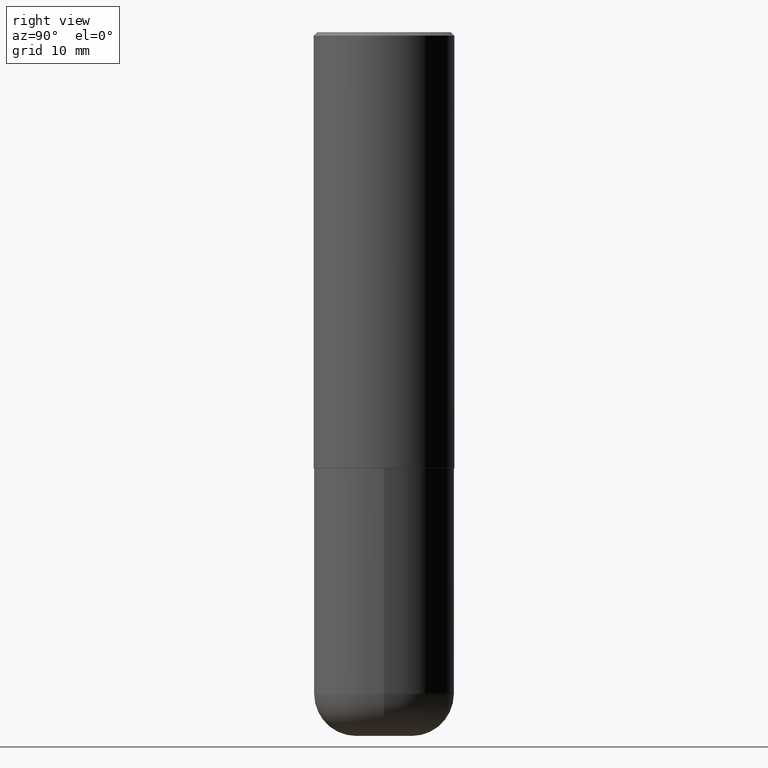
[diagram: clean part render]
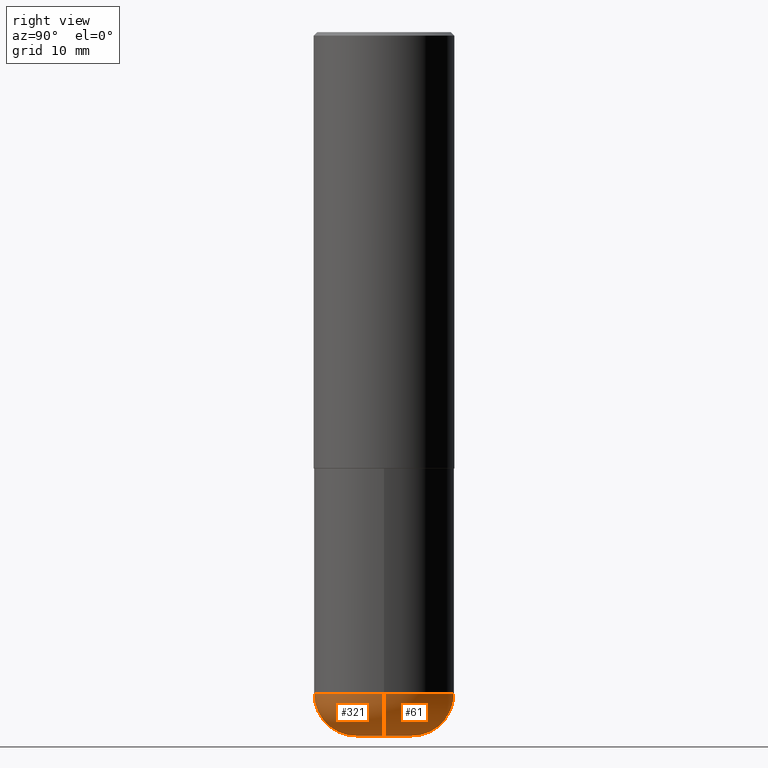
[diagram: same view with one multi-face feature highlighted, each face labeled with its STEP entity id]
A machine part, right view. The highlighted faces form ONE feature: a constant-radius fillet chain: 2 tangent blend faces with common blend radius 5.9995 mm. The faces share edges in the B-rep.
Their STEP definitions:
[1] entity #321 (Torus):
#5 = TOROIDAL_SURFACE ( 'NONE', #405, 0.1575000000000000289, 0.2361999999999999933 ) ;
#11 = DIRECTION ( 'NONE',  ( -2.445468806185136597E-29, 3.491481338843145583E-15, 1.000000000000000000 ) ) ;
#15 = CARTESIAN_POINT ( 'NONE',  ( -0.1575000000000000566, -1.137536230515325427E-14, -3.937000000000000277 ) ) ;
#24 = DIRECTION ( 'NONE',  ( 1.000000000000000000, -6.982962677686265133E-15, 0.000000000000000000 ) ) ;
#33 = CIRCLE ( 'NONE', #264, 0.2361999999999999933 ) ;
#34 = CARTESIAN_POINT ( 'NONE',  ( 9.627810689950883669E-29, -1.374596203102546341E-14, -3.937000000000000277 ) ) ;
#35 = ORIENTED_EDGE ( 'NONE', *, *, #53, .F. ) ;
#41 = EDGE_CURVE ( 'NONE', #85, #111, #33, .T. ) ;
#53 = EDGE_CURVE ( 'NONE', #89, #111, #404, .T. ) ;
#56 = EDGE_LOOP ( 'NONE', ( #322, #208, #223, #35 ) ) ;
#59 = CARTESIAN_POINT ( 'NONE',  ( 0.3936999999999999389, -1.567046654499579837E-14, -3.700800000000000090 ) ) ;
#85 = VERTEX_POINT ( 'NONE', #88 ) ;
#88 = CARTESIAN_POINT ( 'NONE',  ( 0.1575000000000000566, -1.484577865276105326E-14, -3.937000000000000277 ) ) ;
#89 = VERTEX_POINT ( 'NONE', #316 ) ;
#92 = DIRECTION ( 'NONE',  ( -2.445468806185136597E-29, 3.491481338843145583E-15, 1.000000000000000000 ) ) ;
#96 = AXIS2_PLACEMENT_3D ( 'NONE', #134, #325, #263 ) ;
#111 = VERTEX_POINT ( 'NONE', #59 ) ;
#130 = CARTESIAN_POINT ( 'NONE',  ( 9.050190957929953666E-29, -1.292127413879071357E-14, -3.700800000000000090 ) ) ;
#134 = CARTESIAN_POINT ( 'NONE',  ( -0.1575000000000000289, -1.180216932996855439E-14, -3.700800000000000090 ) ) ;
#137 = VERTEX_POINT ( 'NONE', #15 ) ;
#159 = DIRECTION ( 'NONE',  ( -6.982962677686266711E-15, -1.000000000000000000, 3.491481338843145583E-15 ) ) ;
#170 = EDGE_CURVE ( 'NONE', #137, #85, #235, .T. ) ;
#208 = ORIENTED_EDGE ( 'NONE', *, *, #170, .T. ) ;
#223 = ORIENTED_EDGE ( 'NONE', *, *, #41, .T. ) ;
#235 = CIRCLE ( 'NONE', #340, 0.1575000000000000566 ) ;
#238 = EDGE_CURVE ( 'NONE', #137, #89, #279, .T. ) ;
#254 = CARTESIAN_POINT ( 'NONE',  ( 9.050190957929953666E-29, -1.292127413879071357E-14, -3.700800000000000090 ) ) ;
#256 = DIRECTION ( 'NONE',  ( -2.445468806185136597E-29, 3.491481338843145583E-15, 1.000000000000000000 ) ) ;
#263 = DIRECTION ( 'NONE',  ( -1.000000000000000000, 7.105427357601005014E-15, 0.000000000000000000 ) ) ;
#264 = AXIS2_PLACEMENT_3D ( 'NONE', #318, #159, #24 ) ;
#279 = CIRCLE ( 'NONE', #96, 0.2361999999999999933 ) ;
#292 = FACE_OUTER_BOUND ( 'NONE', #56, .T. ) ;
#316 = CARTESIAN_POINT ( 'NONE',  ( -0.3936999999999999389, -1.012386738810319800E-14, -3.700800000000000090 ) ) ;
#318 = CARTESIAN_POINT ( 'NONE',  ( 0.1575000000000000289, -1.402109076052630027E-14, -3.700800000000000090 ) ) ;
#321 = ADVANCED_FACE ( 'NONE', ( #292 ), #5, .T. ) ;
#322 = ORIENTED_EDGE ( 'NONE', *, *, #238, .F. ) ;
#325 = DIRECTION ( 'NONE',  ( 7.105427357601001859E-15, 1.000000000000000000, -3.491481338843145583E-15 ) ) ;
#340 = AXIS2_PLACEMENT_3D ( 'NONE', #34, #256, #377 ) ;
#352 = DIRECTION ( 'NONE',  ( 1.000000000000000000, -6.982962677686269866E-15, 0.000000000000000000 ) ) ;
#363 = DIRECTION ( 'NONE',  ( 1.000000000000000000, -6.982962677686268288E-15, 4.883557194083112901E-29 ) ) ;
#377 = DIRECTION ( 'NONE',  ( 1.000000000000000000, -6.982962677686272233E-15, 0.000000000000000000 ) ) ;
#382 = AXIS2_PLACEMENT_3D ( 'NONE', #254, #92, #352 ) ;
#404 = CIRCLE ( 'NONE', #382, 0.3936999999999999389 ) ;
#405 = AXIS2_PLACEMENT_3D ( 'NONE', #130, #11, #363 ) ;
[2] entity #61 (Torus):
#3 = DIRECTION ( 'NONE',  ( 1.000000000000000000, -6.982962677686269866E-15, 0.000000000000000000 ) ) ;
#4 = DIRECTION ( 'NONE',  ( 1.000000000000000000, -6.982962677686268288E-15, 4.883557194083112901E-29 ) ) ;
#8 = CARTESIAN_POINT ( 'NONE',  ( 9.050190957929953666E-29, -1.292127413879071357E-14, -3.700800000000000090 ) ) ;
#15 = CARTESIAN_POINT ( 'NONE',  ( -0.1575000000000000566, -1.137536230515325427E-14, -3.937000000000000277 ) ) ;
#24 = DIRECTION ( 'NONE',  ( 1.000000000000000000, -6.982962677686265133E-15, 0.000000000000000000 ) ) ;
#29 = DIRECTION ( 'NONE',  ( -2.445468806185136597E-29, 3.491481338843145583E-15, 1.000000000000000000 ) ) ;
#33 = CIRCLE ( 'NONE', #264, 0.2361999999999999933 ) ;
#39 = CIRCLE ( 'NONE', #207, 0.1575000000000000566 ) ;
#41 = EDGE_CURVE ( 'NONE', #85, #111, #33, .T. ) ;
#59 = CARTESIAN_POINT ( 'NONE',  ( 0.3936999999999999389, -1.567046654499579837E-14, -3.700800000000000090 ) ) ;
#61 = ADVANCED_FACE ( 'NONE', ( #119 ), #374, .T. ) ;
#85 = VERTEX_POINT ( 'NONE', #88 ) ;
#88 = CARTESIAN_POINT ( 'NONE',  ( 0.1575000000000000566, -1.484577865276105326E-14, -3.937000000000000277 ) ) ;
#89 = VERTEX_POINT ( 'NONE', #316 ) ;
#96 = AXIS2_PLACEMENT_3D ( 'NONE', #134, #325, #263 ) ;
#111 = VERTEX_POINT ( 'NONE', #59 ) ;
#113 = ORIENTED_EDGE ( 'NONE', *, *, #41, .F. ) ;
#119 = FACE_OUTER_BOUND ( 'NONE', #209, .T. ) ;
#125 = DIRECTION ( 'NONE',  ( -2.445468806185136597E-29, 3.491481338843145583E-15, 1.000000000000000000 ) ) ;
#126 = CARTESIAN_POINT ( 'NONE',  ( 9.050190957929953666E-29, -1.292127413879071357E-14, -3.700800000000000090 ) ) ;
#134 = CARTESIAN_POINT ( 'NONE',  ( -0.1575000000000000289, -1.180216932996855439E-14, -3.700800000000000090 ) ) ;
#137 = VERTEX_POINT ( 'NONE', #15 ) ;
#159 = DIRECTION ( 'NONE',  ( -6.982962677686266711E-15, -1.000000000000000000, 3.491481338843145583E-15 ) ) ;
#187 = CIRCLE ( 'NONE', #298, 0.3936999999999999389 ) ;
#200 = DIRECTION ( 'NONE',  ( 1.000000000000000000, -6.982962677686272233E-15, 0.000000000000000000 ) ) ;
#204 = CARTESIAN_POINT ( 'NONE',  ( 9.627810689950883669E-29, -1.374596203102546341E-14, -3.937000000000000277 ) ) ;
#206 = EDGE_CURVE ( 'NONE', #111, #89, #187, .T. ) ;
#207 = AXIS2_PLACEMENT_3D ( 'NONE', #204, #230, #200 ) ;
#209 = EDGE_LOOP ( 'NONE', ( #400, #338, #411, #113 ) ) ;
#230 = DIRECTION ( 'NONE',  ( -2.445468806185136597E-29, 3.491481338843145583E-15, 1.000000000000000000 ) ) ;
#238 = EDGE_CURVE ( 'NONE', #137, #89, #279, .T. ) ;
#262 = EDGE_CURVE ( 'NONE', #85, #137, #39, .T. ) ;
#263 = DIRECTION ( 'NONE',  ( -1.000000000000000000, 7.105427357601005014E-15, 0.000000000000000000 ) ) ;
#264 = AXIS2_PLACEMENT_3D ( 'NONE', #318, #159, #24 ) ;
#279 = CIRCLE ( 'NONE', #96, 0.2361999999999999933 ) ;
#298 = AXIS2_PLACEMENT_3D ( 'NONE', #126, #29, #3 ) ;
#305 = AXIS2_PLACEMENT_3D ( 'NONE', #8, #125, #4 ) ;
#316 = CARTESIAN_POINT ( 'NONE',  ( -0.3936999999999999389, -1.012386738810319800E-14, -3.700800000000000090 ) ) ;
#318 = CARTESIAN_POINT ( 'NONE',  ( 0.1575000000000000289, -1.402109076052630027E-14, -3.700800000000000090 ) ) ;
#325 = DIRECTION ( 'NONE',  ( 7.105427357601001859E-15, 1.000000000000000000, -3.491481338843145583E-15 ) ) ;
#338 = ORIENTED_EDGE ( 'NONE', *, *, #238, .T. ) ;
#374 = TOROIDAL_SURFACE ( 'NONE', #305, 0.1575000000000000289, 0.2361999999999999933 ) ;
#400 = ORIENTED_EDGE ( 'NONE', *, *, #262, .T. ) ;
#411 = ORIENTED_EDGE ( 'NONE', *, *, #206, .F. ) ;